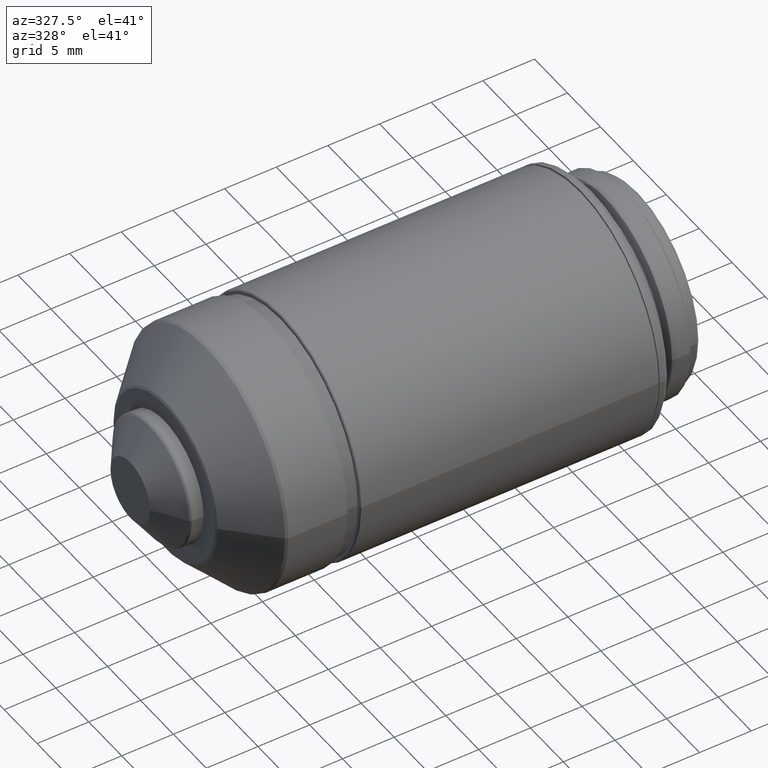
[diagram: clean part render]
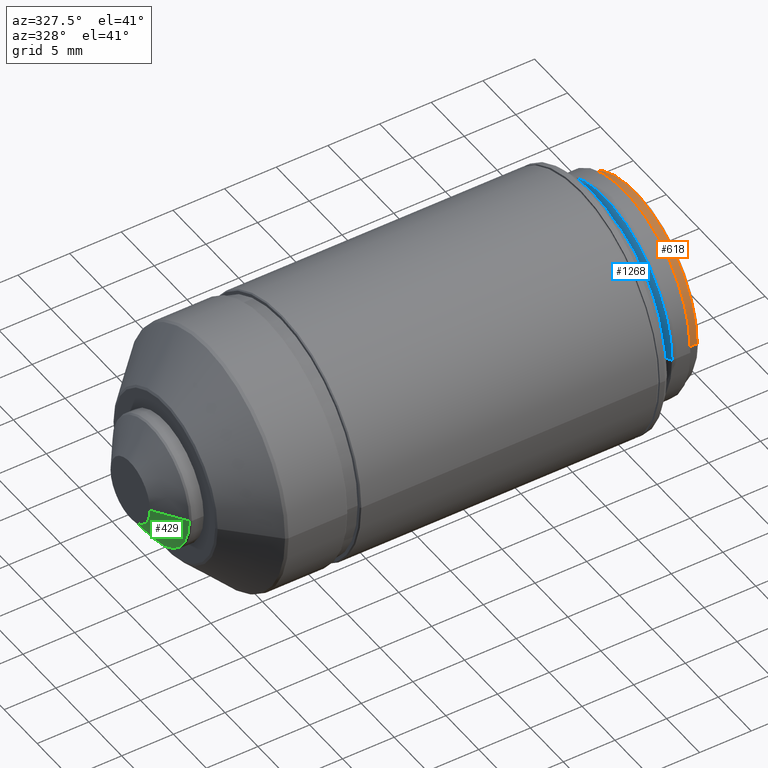
[diagram: same view with three faces highlighted in distinct colors, each labeled with its STEP entity id]
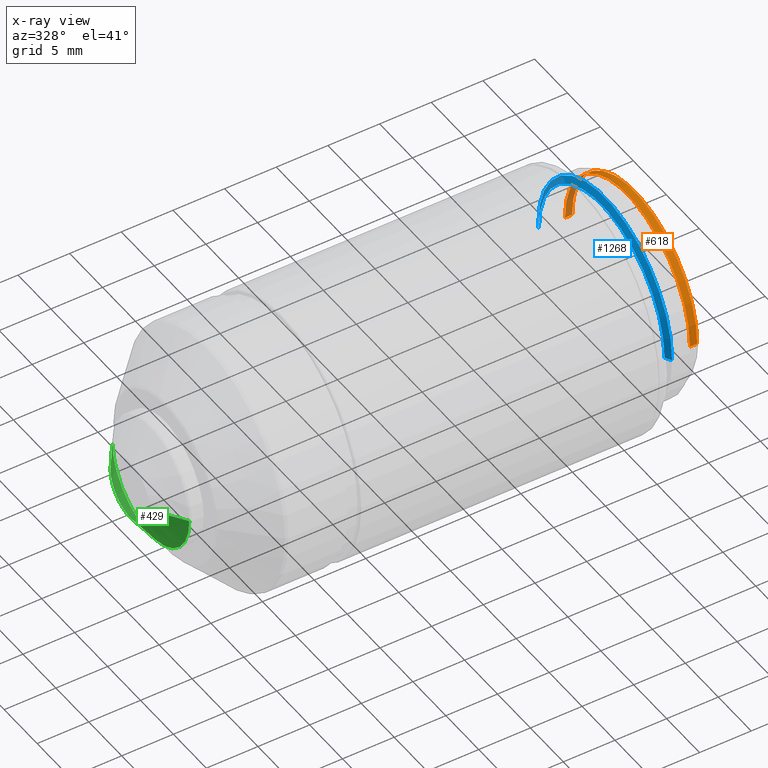
[diagram: x-ray of the same camera — body ghosted, the three highlighted faces saturated]
A machine part, auxiliary view with three faces highlighted in distinct colors.
The next image is the same camera in x-ray (body ghosted, the three faces saturated) — at least one of them is partly hidden behind the body in this view.
Their STEP definitions:

[orange] entity #618 — the highlighted cylindrical surface (partial cylindrical patch) has radius 9.5 mm, axis along (1, 0, 0).
#72 = EDGE_LOOP ( 'NONE', ( #1024, #363, #249, #172 ) ) ;
#172 = ORIENTED_EDGE ( 'NONE', *, *, #903, .F. ) ;
#197 = DIRECTION ( 'NONE',  ( 1.000000000000000000, 0.000000000000000000, 0.000000000000000000 ) ) ;
#232 = CIRCLE ( 'NONE', #737, 9.500000000000000000 ) ;
#249 = ORIENTED_EDGE ( 'NONE', *, *, #648, .F. ) ;
#263 = VERTEX_POINT ( 'NONE', #540 ) ;
#350 = DIRECTION ( 'NONE',  ( 1.000000000000000000, 0.000000000000000000, 0.000000000000000000 ) ) ;
#361 = CARTESIAN_POINT ( 'NONE',  ( 49.19999961320810655, 0.000000000000000000, 0.000000000000000000 ) ) ;
#363 = ORIENTED_EDGE ( 'NONE', *, *, #1240, .T. ) ;
#365 = AXIS2_PLACEMENT_3D ( 'NONE', #1167, #1274, #654 ) ;
#401 = CARTESIAN_POINT ( 'NONE',  ( 49.19999961320810655, 9.500000000000000000, 0.000000000000000000 ) ) ;
#437 = VECTOR ( 'NONE', #500, 1000.000000000000000 ) ;
#500 = DIRECTION ( 'NONE',  ( 1.000000000000000000, 0.000000000000000000, 0.000000000000000000 ) ) ;
#502 = DIRECTION ( 'NONE',  ( 0.000000000000000000, 1.000000000000000000, 0.000000000000000000 ) ) ;
#510 = CARTESIAN_POINT ( 'NONE',  ( 48.84999980660400354, -9.500000000000000000, 0.000000000000000000 ) ) ;
#540 = CARTESIAN_POINT ( 'NONE',  ( 49.19999961320810655, -9.500000000000000000, -1.163414459189989824E-15 ) ) ;
#541 = EDGE_CURVE ( 'NONE', #566, #922, #918, .T. ) ;
#566 = VERTEX_POINT ( 'NONE', #571 ) ;
#571 = CARTESIAN_POINT ( 'NONE',  ( 48.50000000000000000, 9.500000000000000000, -1.163414459189989824E-15 ) ) ;
#618 = ADVANCED_FACE ( 'NONE', ( #852 ), #685, .T. ) ;
#634 = CARTESIAN_POINT ( 'NONE',  ( 48.84999980660400354, 9.500000000000000000, -1.163414459189989824E-15 ) ) ;
#647 = LINE ( 'NONE', #634, #1128 ) ;
#648 = EDGE_CURVE ( 'NONE', #1237, #263, #232, .T. ) ;
#654 = DIRECTION ( 'NONE',  ( 0.000000000000000000, -1.000000000000000000, 0.000000000000000000 ) ) ;
#685 = CYLINDRICAL_SURFACE ( 'NONE', #365, 9.500000000000000000 ) ;
#736 = AXIS2_PLACEMENT_3D ( 'NONE', #1071, #197, #502 ) ;
#737 = AXIS2_PLACEMENT_3D ( 'NONE', #361, #1053, #1047 ) ;
#852 = FACE_OUTER_BOUND ( 'NONE', #72, .T. ) ;
#903 = EDGE_CURVE ( 'NONE', #566, #1237, #647, .T. ) ;
#918 = CIRCLE ( 'NONE', #736, 9.500000000000000000 ) ;
#922 = VERTEX_POINT ( 'NONE', #1219 ) ;
#1024 = ORIENTED_EDGE ( 'NONE', *, *, #541, .T. ) ;
#1047 = DIRECTION ( 'NONE',  ( 0.000000000000000000, 1.000000000000000000, 0.000000000000000000 ) ) ;
#1053 = DIRECTION ( 'NONE',  ( 1.000000000000000000, 0.000000000000000000, 0.000000000000000000 ) ) ;
#1071 = CARTESIAN_POINT ( 'NONE',  ( 48.50000000000000000, 0.000000000000000000, 0.000000000000000000 ) ) ;
#1128 = VECTOR ( 'NONE', #350, 1000.000000000000000 ) ;
#1167 = CARTESIAN_POINT ( 'NONE',  ( 48.84999980660400354, 0.000000000000000000, 0.000000000000000000 ) ) ;
#1179 = LINE ( 'NONE', #510, #437 ) ;
#1219 = CARTESIAN_POINT ( 'NONE',  ( 48.50000000000000000, -9.500000000000000000, 0.000000000000000000 ) ) ;
#1237 = VERTEX_POINT ( 'NONE', #401 ) ;
#1240 = EDGE_CURVE ( 'NONE', #922, #263, #1179, .T. ) ;
#1274 = DIRECTION ( 'NONE',  ( 1.000000000000000000, 0.000000000000000000, 0.000000000000000000 ) ) ;

[blue] entity #1268 — the highlighted conical surface has half-angle 60 deg.
#9 = DIRECTION ( 'NONE',  ( 0.5000000000000067724, 0.8660254037844345998, -1.060575238724899519E-16 ) ) ;
#40 = CARTESIAN_POINT ( 'NONE',  ( 46.00000000000000000, 0.000000000000000000, 0.000000000000000000 ) ) ;
#57 = DIRECTION ( 'NONE',  ( 1.000000000000000000, 0.000000000000000000, 0.000000000000000000 ) ) ;
#63 = CONICAL_SURFACE ( 'NONE', #702, 10.16000000000000014, 1.047197551196589860 ) ;
#80 = AXIS2_PLACEMENT_3D ( 'NONE', #40, #815, #633 ) ;
#109 = VERTEX_POINT ( 'NONE', #519 ) ;
#188 = EDGE_LOOP ( 'NONE', ( #968, #368, #945, #388 ) ) ;
#191 = EDGE_CURVE ( 'NONE', #673, #109, #326, .T. ) ;
#218 = CARTESIAN_POINT ( 'NONE',  ( 46.35218366420570391, -10.16000000000000014, 0.000000000000000000 ) ) ;
#240 = EDGE_CURVE ( 'NONE', #660, #377, #1143, .T. ) ;
#326 = CIRCLE ( 'NONE', #547, 10.16000000000000014 ) ;
#332 = CARTESIAN_POINT ( 'NONE',  ( 46.35218366420570391, 0.000000000000000000, 0.000000000000000000 ) ) ;
#345 = VECTOR ( 'NONE', #9, 1000.000000000000114 ) ;
#368 = ORIENTED_EDGE ( 'NONE', *, *, #191, .F. ) ;
#377 = VERTEX_POINT ( 'NONE', #583 ) ;
#388 = ORIENTED_EDGE ( 'NONE', *, *, #240, .T. ) ;
#481 = EDGE_CURVE ( 'NONE', #377, #109, #973, .T. ) ;
#485 = DIRECTION ( 'NONE',  ( 0.000000000000000000, -1.000000000000000000, 0.000000000000000000 ) ) ;
#508 = DIRECTION ( 'NONE',  ( 0.5000000000000067724, -0.8660254037844345998, 0.000000000000000000 ) ) ;
#519 = CARTESIAN_POINT ( 'NONE',  ( 46.35218366420570391, -10.16000000000000014, 0.000000000000000000 ) ) ;
#547 = AXIS2_PLACEMENT_3D ( 'NONE', #332, #57, #724 ) ;
#548 = EDGE_CURVE ( 'NONE', #660, #673, #593, .T. ) ;
#565 = CARTESIAN_POINT ( 'NONE',  ( 46.00000000000000000, 9.549999999999998934, -1.169537693185719994E-15 ) ) ;
#583 = CARTESIAN_POINT ( 'NONE',  ( 46.00000000000000000, -9.549999999999998934, 0.000000000000000000 ) ) ;
#593 = LINE ( 'NONE', #978, #345 ) ;
#633 = DIRECTION ( 'NONE',  ( 0.000000000000000000, 1.000000000000000000, 0.000000000000000000 ) ) ;
#660 = VERTEX_POINT ( 'NONE', #565 ) ;
#673 = VERTEX_POINT ( 'NONE', #1069 ) ;
#695 = FACE_OUTER_BOUND ( 'NONE', #188, .T. ) ;
#702 = AXIS2_PLACEMENT_3D ( 'NONE', #993, #1198, #485 ) ;
#724 = DIRECTION ( 'NONE',  ( 0.000000000000000000, 1.000000000000000000, 0.000000000000000000 ) ) ;
#815 = DIRECTION ( 'NONE',  ( 1.000000000000000000, 0.000000000000000000, 0.000000000000000000 ) ) ;
#945 = ORIENTED_EDGE ( 'NONE', *, *, #548, .F. ) ;
#968 = ORIENTED_EDGE ( 'NONE', *, *, #481, .T. ) ;
#973 = LINE ( 'NONE', #218, #1144 ) ;
#978 = CARTESIAN_POINT ( 'NONE',  ( 46.35218366420570391, 10.16000000000000014, -1.244241147933709878E-15 ) ) ;
#993 = CARTESIAN_POINT ( 'NONE',  ( 46.35218366420570391, 0.000000000000000000, 0.000000000000000000 ) ) ;
#1069 = CARTESIAN_POINT ( 'NONE',  ( 46.35218366420570391, 10.16000000000000014, -1.244241147933709878E-15 ) ) ;
#1143 = CIRCLE ( 'NONE', #80, 9.549999999999998934 ) ;
#1144 = VECTOR ( 'NONE', #508, 1000.000000000000114 ) ;
#1198 = DIRECTION ( 'NONE',  ( 1.000000000000000000, 0.000000000000000000, 0.000000000000000000 ) ) ;
#1268 = ADVANCED_FACE ( 'NONE', ( #695 ), #63, .T. ) ;

[green] entity #429 — the highlighted conical surface has half-angle 55 deg.
#18 = EDGE_CURVE ( 'NONE', #1097, #1002, #607, .T. ) ;
#34 = CARTESIAN_POINT ( 'NONE',  ( 2.375591483897669942, -5.850000000000000533, 0.000000000000000000 ) ) ;
#39 = ORIENTED_EDGE ( 'NONE', *, *, #406, .F. ) ;
#61 = CARTESIAN_POINT ( 'NONE',  ( 0.3799999999999950084, 3.000000000000000000, -3.673940397442060361E-16 ) ) ;
#73 = DIRECTION ( 'NONE',  ( 0.000000000000000000, -1.000000000000000000, 0.000000000000000000 ) ) ;
#93 = DIRECTION ( 'NONE',  ( 1.000000000000000000, 0.000000000000000000, 0.000000000000000000 ) ) ;
#167 = CARTESIAN_POINT ( 'NONE',  ( 2.375591483897669942, 0.000000000000000000, 0.000000000000000000 ) ) ;
#189 = CARTESIAN_POINT ( 'NONE',  ( 2.375591483897669942, 0.000000000000000000, 0.000000000000000000 ) ) ;
#225 = VERTEX_POINT ( 'NONE', #34 ) ;
#238 = CARTESIAN_POINT ( 'NONE',  ( 2.375591483897669942, 5.850000000000000533, -7.164183775012010506E-16 ) ) ;
#297 = CARTESIAN_POINT ( 'NONE',  ( 0.3799999999999950084, 0.000000000000000000, 0.000000000000000000 ) ) ;
#303 = DIRECTION ( 'NONE',  ( 1.000000000000000000, 0.000000000000000000, 0.000000000000000000 ) ) ;
#398 = CARTESIAN_POINT ( 'NONE',  ( 0.3799999999999950084, -3.000000000000000000, 0.000000000000000000 ) ) ;
#406 = EDGE_CURVE ( 'NONE', #225, #1002, #433, .T. ) ;
#416 = LINE ( 'NONE', #698, #1060 ) ;
#417 = CARTESIAN_POINT ( 'NONE',  ( 2.375591483897669942, 5.850000000000000533, -7.164183775012020367E-16 ) ) ;
#429 = ADVANCED_FACE ( 'NONE', ( #751 ), #1208, .T. ) ;
#433 = CIRCLE ( 'NONE', #491, 5.850000000000000533 ) ;
#449 = VERTEX_POINT ( 'NONE', #398 ) ;
#460 = DIRECTION ( 'NONE',  ( 0.5735764363510458264, -0.8191520442889919096, 0.000000000000000000 ) ) ;
#491 = AXIS2_PLACEMENT_3D ( 'NONE', #189, #93, #1141 ) ;
#560 = EDGE_CURVE ( 'NONE', #449, #225, #416, .T. ) ;
#607 = LINE ( 'NONE', #417, #1166 ) ;
#655 = AXIS2_PLACEMENT_3D ( 'NONE', #167, #946, #73 ) ;
#698 = CARTESIAN_POINT ( 'NONE',  ( 2.375591483897669942, -5.850000000000000533, 0.000000000000000000 ) ) ;
#718 = AXIS2_PLACEMENT_3D ( 'NONE', #297, #303, #802 ) ;
#748 = EDGE_CURVE ( 'NONE', #449, #1097, #1146, .T. ) ;
#751 = FACE_OUTER_BOUND ( 'NONE', #866, .T. ) ;
#802 = DIRECTION ( 'NONE',  ( 0.000000000000000000, 1.000000000000000000, 0.000000000000000000 ) ) ;
#866 = EDGE_LOOP ( 'NONE', ( #39, #1243, #1045, #1008 ) ) ;
#946 = DIRECTION ( 'NONE',  ( 1.000000000000000000, 0.000000000000000000, 0.000000000000000000 ) ) ;
#992 = DIRECTION ( 'NONE',  ( 0.5735764363510458264, 0.8191520442889919096, -1.003171929053519816E-16 ) ) ;
#1002 = VERTEX_POINT ( 'NONE', #238 ) ;
#1008 = ORIENTED_EDGE ( 'NONE', *, *, #18, .T. ) ;
#1045 = ORIENTED_EDGE ( 'NONE', *, *, #748, .T. ) ;
#1060 = VECTOR ( 'NONE', #460, 1000.000000000000114 ) ;
#1097 = VERTEX_POINT ( 'NONE', #61 ) ;
#1141 = DIRECTION ( 'NONE',  ( 0.000000000000000000, 1.000000000000000000, 0.000000000000000000 ) ) ;
#1146 = CIRCLE ( 'NONE', #718, 3.000000000000000000 ) ;
#1166 = VECTOR ( 'NONE', #992, 1000.000000000000114 ) ;
#1208 = CONICAL_SURFACE ( 'NONE', #655, 5.850000000000000533, 0.9599310885968814766 ) ;
#1243 = ORIENTED_EDGE ( 'NONE', *, *, #560, .F. ) ;